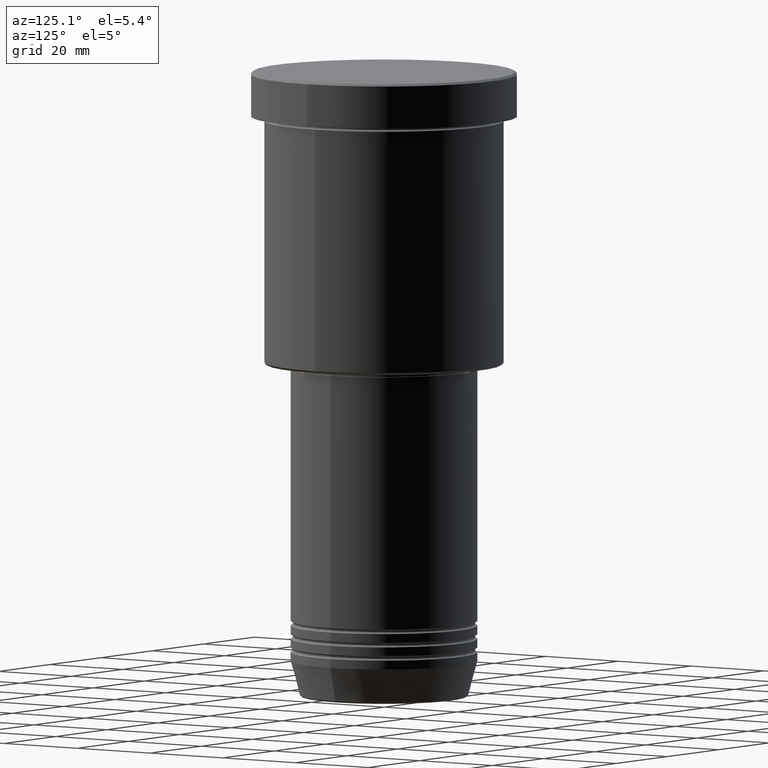
[diagram: clean part render]
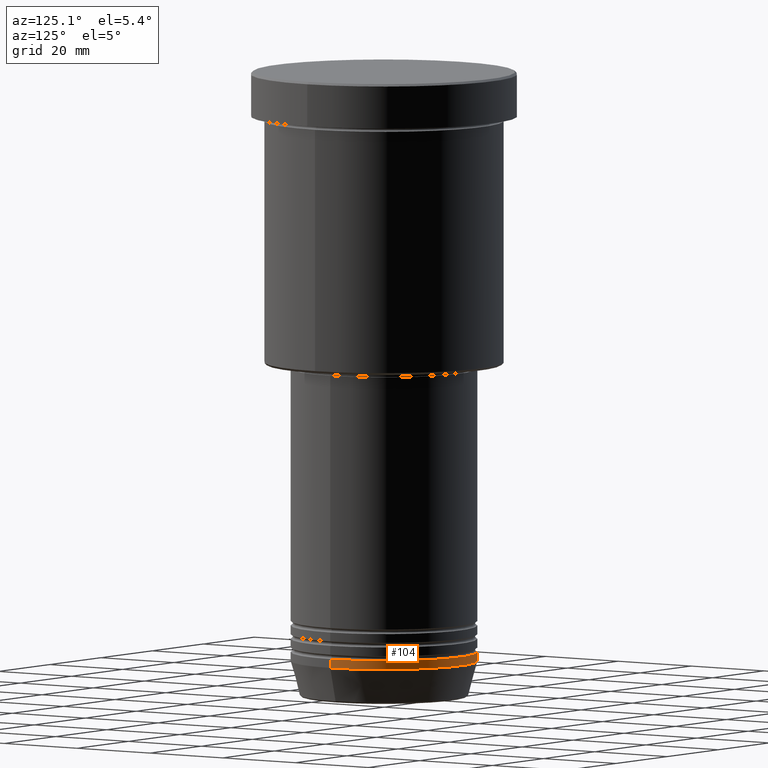
[diagram: same view with one face highlighted and labeled with its STEP entity id]
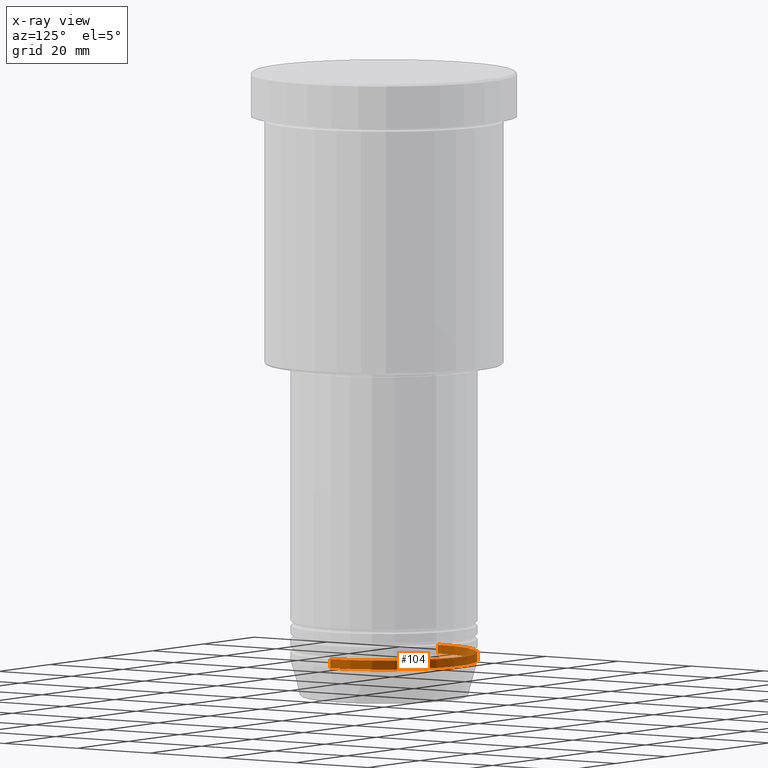
[diagram: x-ray of the same camera — body ghosted, the highlighted face saturated]
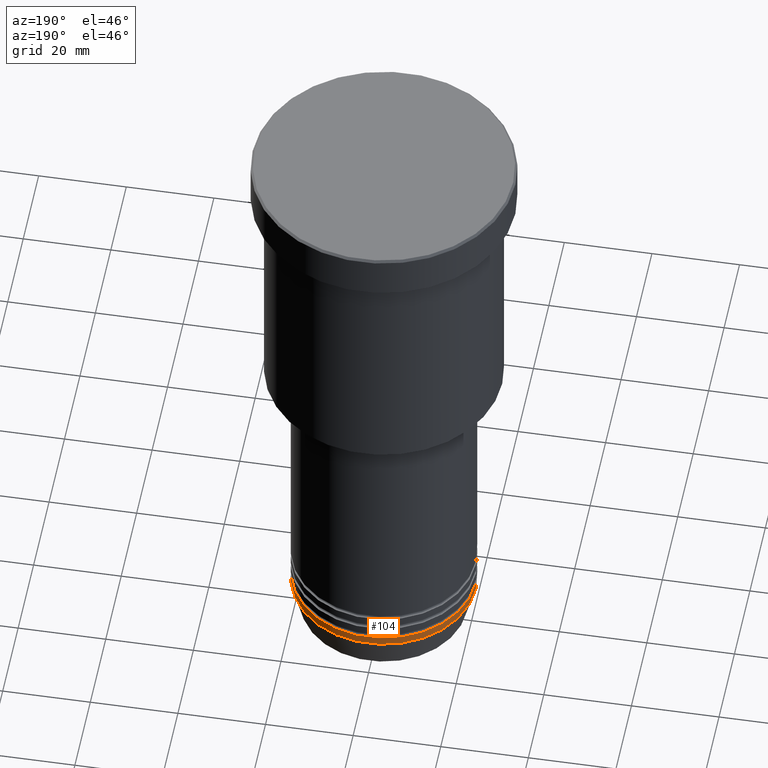
[diagram: same view with one face highlighted and labeled with its STEP entity id]
A machine part, auxiliary view. The second image highlights one B-rep face of the part: STEP entity #104.
The next image is the same camera in x-ray: the body ghosted, the highlighted face saturated — about 17% of this face is hidden behind the body in this view.
A second angle (auxiliary view) of the same face is appended — the face is thin or edge-on in the first view.
In plain terms, the highlighted cylindrical surface (partial cylindrical patch) has radius 21 mm, axis along (-0, -0, 1).
Its self-contained STEP definition (entity closure, byte-faithful):
#12 = FACE_OUTER_BOUND ( 'NONE', #187, .T. ) ;
#31 = DIRECTION ( 'NONE',  ( -0.000000000000000000, -0.000000000000000000, 1.000000000000000000 ) ) ;
#38 = AXIS2_PLACEMENT_3D ( 'NONE', #50, #623, #599 ) ;
#45 = CARTESIAN_POINT ( 'NONE',  ( -21.00000000000000000, 2.571758278209441661E-15, -131.0000000000000000 ) ) ;
#50 = CARTESIAN_POINT ( 'NONE',  ( 0.000000000000000000, 0.000000000000000000, -131.0000000000000000 ) ) ;
#90 = EDGE_CURVE ( 'NONE', #670, #784, #542, .T. ) ;
#96 = ORIENTED_EDGE ( 'NONE', *, *, #1045, .F. ) ;
#104 = ADVANCED_FACE ( 'NONE', ( #12 ), #372, .T. ) ;
#187 = EDGE_LOOP ( 'NONE', ( #626, #573, #96, #761 ) ) ;
#211 = DIRECTION ( 'NONE',  ( 1.000000000000000000, 0.000000000000000000, 0.000000000000000000 ) ) ;
#285 = VECTOR ( 'NONE', #309, 1000.000000000000000 ) ;
#309 = DIRECTION ( 'NONE',  ( -0.000000000000000000, -0.000000000000000000, 1.000000000000000000 ) ) ;
#372 = CYLINDRICAL_SURFACE ( 'NONE', #792, 21.00000000000000000 ) ;
#397 = CARTESIAN_POINT ( 'NONE',  ( -21.00000000000000000, 2.571758278209441661E-15, 0.000000000000000000 ) ) ;
#449 = DIRECTION ( 'NONE',  ( -0.000000000000000000, -0.000000000000000000, 1.000000000000000000 ) ) ;
#464 = DIRECTION ( 'NONE',  ( 1.000000000000000000, 0.000000000000000000, 0.000000000000000000 ) ) ;
#492 = CARTESIAN_POINT ( 'NONE',  ( 21.00000000000000000, 0.000000000000000000, -131.0000000000000000 ) ) ;
#506 = VERTEX_POINT ( 'NONE', #492 ) ;
#513 = EDGE_CURVE ( 'NONE', #784, #669, #862, .T. ) ;
#542 = CIRCLE ( 'NONE', #837, 21.00000000000000000 ) ;
#573 = ORIENTED_EDGE ( 'NONE', *, *, #513, .T. ) ;
#599 = DIRECTION ( 'NONE',  ( 1.000000000000000000, 0.000000000000000000, 0.000000000000000000 ) ) ;
#623 = DIRECTION ( 'NONE',  ( -0.000000000000000000, -0.000000000000000000, 1.000000000000000000 ) ) ;
#626 = ORIENTED_EDGE ( 'NONE', *, *, #90, .T. ) ;
#656 = VECTOR ( 'NONE', #449, 1000.000000000000000 ) ;
#657 = CIRCLE ( 'NONE', #38, 21.00000000000000000 ) ;
#669 = VERTEX_POINT ( 'NONE', #45 ) ;
#670 = VERTEX_POINT ( 'NONE', #1167 ) ;
#725 = CARTESIAN_POINT ( 'NONE',  ( 21.00000000000000000, 0.000000000000000000, 0.000000000000000000 ) ) ;
#761 = ORIENTED_EDGE ( 'NONE', *, *, #903, .F. ) ;
#784 = VERTEX_POINT ( 'NONE', #1086 ) ;
#792 = AXIS2_PLACEMENT_3D ( 'NONE', #860, #31, #211 ) ;
#833 = CARTESIAN_POINT ( 'NONE',  ( 0.000000000000000000, 0.000000000000000000, -133.0000000000000000 ) ) ;
#837 = AXIS2_PLACEMENT_3D ( 'NONE', #833, #930, #464 ) ;
#860 = CARTESIAN_POINT ( 'NONE',  ( 0.000000000000000000, 0.000000000000000000, 0.000000000000000000 ) ) ;
#862 = LINE ( 'NONE', #397, #285 ) ;
#903 = EDGE_CURVE ( 'NONE', #670, #506, #1011, .T. ) ;
#930 = DIRECTION ( 'NONE',  ( -0.000000000000000000, -0.000000000000000000, 1.000000000000000000 ) ) ;
#1011 = LINE ( 'NONE', #725, #656 ) ;
#1045 = EDGE_CURVE ( 'NONE', #506, #669, #657, .T. ) ;
#1086 = CARTESIAN_POINT ( 'NONE',  ( -21.00000000000000000, 2.571758278209441661E-15, -133.0000000000000000 ) ) ;
#1167 = CARTESIAN_POINT ( 'NONE',  ( 21.00000000000000000, 0.000000000000000000, -133.0000000000000000 ) ) ;